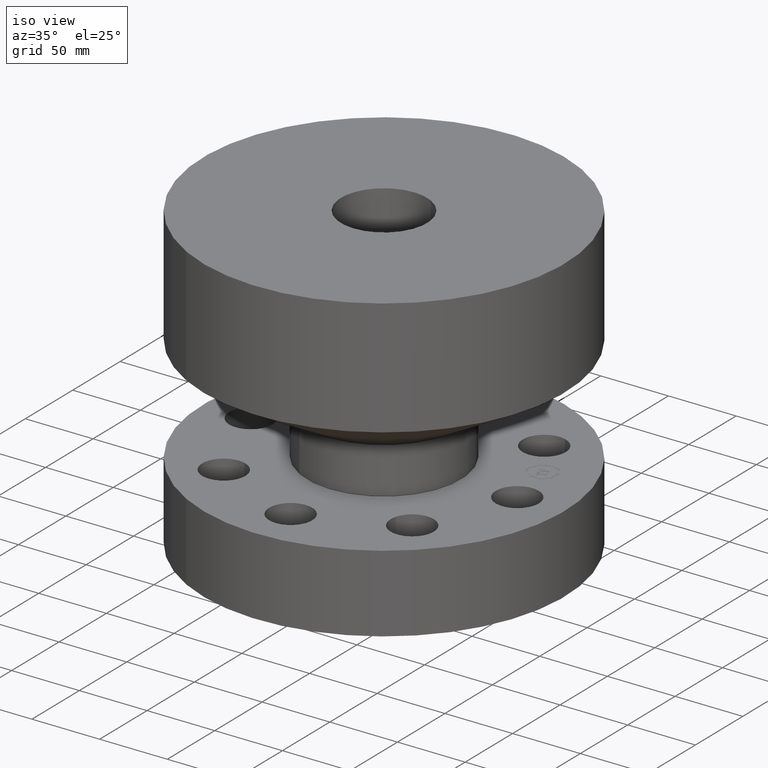
[diagram: clean part render]
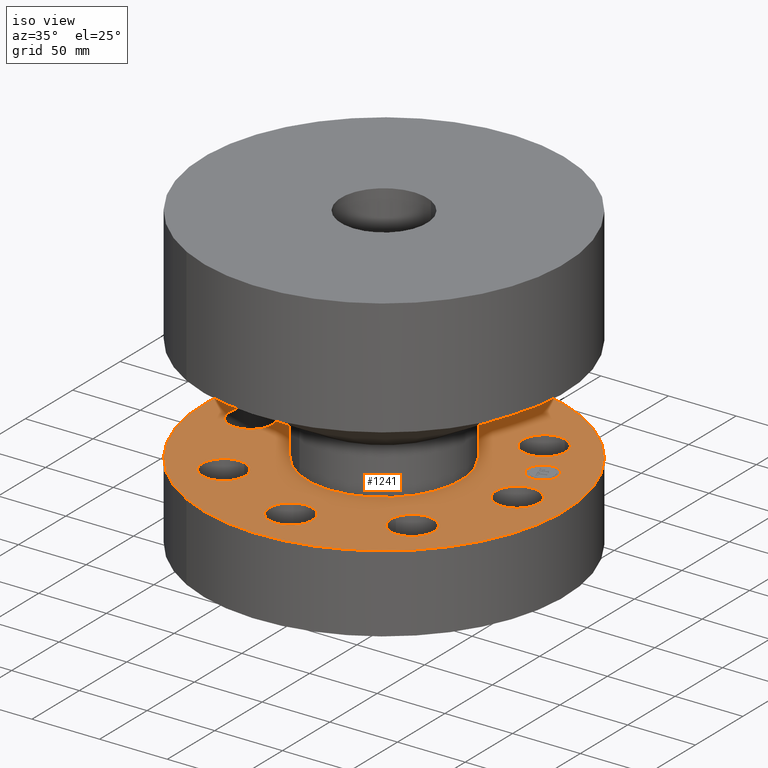
[diagram: same view with one face highlighted and labeled with its STEP entity id]
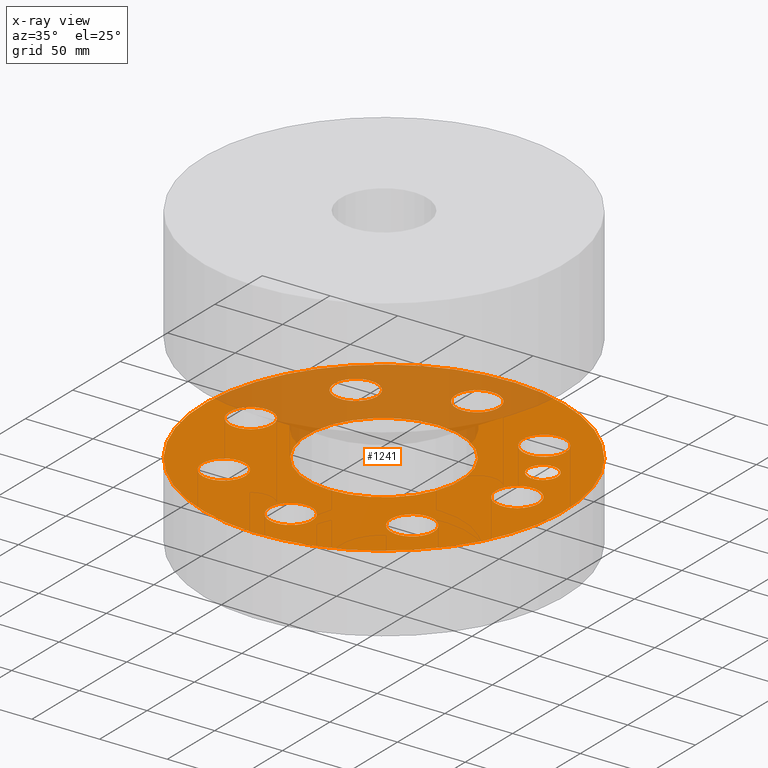
[diagram: x-ray of the same camera — body ghosted, the highlighted face saturated]
A machine part, iso view. The second image highlights one B-rep face of the part: STEP entity #1241.
The next image is the same camera in x-ray: the body ghosted, the highlighted face saturated — about 30% of this face is hidden behind the body in this view.
In plain terms, the highlighted planar face has unit normal (0, 0, -1).
Its self-contained STEP definition (entity closure, byte-faithful):
#65=AXIS2_PLACEMENT_3D('Circle Axis2P3D',#63,#64,$) ;
#266=AXIS2_PLACEMENT_3D('Circle Axis2P3D',#264,#265,$) ;
#285=AXIS2_PLACEMENT_3D('Circle Axis2P3D',#283,#284,$) ;
#302=AXIS2_PLACEMENT_3D('Circle Axis2P3D',#300,#301,$) ;
#337=AXIS2_PLACEMENT_3D('Circle Axis2P3D',#335,#336,$) ;
#867=AXIS2_PLACEMENT_3D('Circle Axis2P3D',#865,#866,$) ;
#898=AXIS2_PLACEMENT_3D('Circle Axis2P3D',#896,#897,$) ;
#910=AXIS2_PLACEMENT_3D('Circle Axis2P3D',#908,#909,$) ;
#941=AXIS2_PLACEMENT_3D('Circle Axis2P3D',#939,#940,$) ;
#953=AXIS2_PLACEMENT_3D('Circle Axis2P3D',#951,#952,$) ;
#984=AXIS2_PLACEMENT_3D('Circle Axis2P3D',#982,#983,$) ;
#996=AXIS2_PLACEMENT_3D('Circle Axis2P3D',#994,#995,$) ;
#1027=AXIS2_PLACEMENT_3D('Circle Axis2P3D',#1025,#1026,$) ;
#1039=AXIS2_PLACEMENT_3D('Circle Axis2P3D',#1037,#1038,$) ;
#1070=AXIS2_PLACEMENT_3D('Circle Axis2P3D',#1068,#1069,$) ;
#1082=AXIS2_PLACEMENT_3D('Circle Axis2P3D',#1080,#1081,$) ;
#1113=AXIS2_PLACEMENT_3D('Circle Axis2P3D',#1111,#1112,$) ;
#1125=AXIS2_PLACEMENT_3D('Circle Axis2P3D',#1123,#1124,$) ;
#1156=AXIS2_PLACEMENT_3D('Circle Axis2P3D',#1154,#1155,$) ;
#1168=AXIS2_PLACEMENT_3D('Circle Axis2P3D',#1166,#1167,$) ;
#1181=AXIS2_PLACEMENT_3D('Plane Axis2P3D',#1178,#1179,#1180) ;
#1225=AXIS2_PLACEMENT_3D('Circle Axis2P3D',#1223,#1224,$) ;
#1234=AXIS2_PLACEMENT_3D('Circle Axis2P3D',#1232,#1233,$) ;
#44=CARTESIAN_POINT('Vertex',(4.4234891012,0.299640961629,2.25000000001)) ;
#60=CARTESIAN_POINT('Vertex',(3.32651089883,-0.299640961629,2.25000000001)) ;
#63=CARTESIAN_POINT('Axis2P3D Location',(3.87500000002,0.,2.25000000001)) ;
#261=CARTESIAN_POINT('Vertex',(-2.51698407768,-4.60730844994,2.25000000001)) ;
#264=CARTESIAN_POINT('Axis2P3D Location',(0.,0.,2.25000000001)) ;
#268=CARTESIAN_POINT('Vertex',(2.51698407768,4.60730844994,2.25000000001)) ;
#283=CARTESIAN_POINT('Axis2P3D Location',(0.,0.,2.25000000001)) ;
#300=CARTESIAN_POINT('Axis2P3D Location',(0.,0.,2.25000000001)) ;
#304=CARTESIAN_POINT('Vertex',(1.07151607878,1.96139702583,2.25000000001)) ;
#306=CARTESIAN_POINT('Vertex',(-1.07151607878,-1.96139702583,2.25000000001)) ;
#335=CARTESIAN_POINT('Axis2P3D Location',(0.,0.,2.25000000001)) ;
#865=CARTESIAN_POINT('Axis2P3D Location',(3.87500000002,0.,2.25000000001)) ;
#886=CARTESIAN_POINT('Vertex',(3.33975729585,-2.91600098407,2.25000000001)) ;
#893=CARTESIAN_POINT('Vertex',(2.14032025837,-2.56407657014,2.25000000001)) ;
#896=CARTESIAN_POINT('Axis2P3D Location',(2.74003877711,-2.74003877711,2.25000000001)) ;
#908=CARTESIAN_POINT('Axis2P3D Location',(2.74003877711,-2.74003877711,2.25000000001)) ;
#929=CARTESIAN_POINT('Vertex',(0.299640961629,-4.4234891012,2.25000000001)) ;
#936=CARTESIAN_POINT('Vertex',(-0.299640961629,-3.32651089883,2.25000000001)) ;
#939=CARTESIAN_POINT('Axis2P3D Location',(-3.22207151767E-016,-3.87500000002,2.25000000001)) ;
#951=CARTESIAN_POINT('Axis2P3D Location',(-3.22207151767E-016,-3.87500000002,2.25000000001)) ;
#972=CARTESIAN_POINT('Vertex',(-2.91600098407,-3.33975729585,2.25000000001)) ;
#979=CARTESIAN_POINT('Vertex',(-2.56407657014,-2.14032025837,2.25000000001)) ;
#982=CARTESIAN_POINT('Axis2P3D Location',(-2.74003877711,-2.74003877711,2.25000000001)) ;
#994=CARTESIAN_POINT('Axis2P3D Location',(-2.74003877711,-2.74003877711,2.25000000001)) ;
#1015=CARTESIAN_POINT('Vertex',(-4.4234891012,-0.299640961629,2.25000000001)) ;
#1022=CARTESIAN_POINT('Vertex',(-3.32651089883,0.299640961629,2.25000000001)) ;
#1025=CARTESIAN_POINT('Axis2P3D Location',(-3.87500000002,-4.74550634671E-016,2.25000000001)) ;
#1037=CARTESIAN_POINT('Axis2P3D Location',(-3.87500000002,-4.74550634671E-016,2.25000000001)) ;
#1058=CARTESIAN_POINT('Vertex',(-3.33975729585,2.91600098407,2.25000000001)) ;
#1065=CARTESIAN_POINT('Vertex',(-2.14032025837,2.56407657014,2.25000000001)) ;
#1068=CARTESIAN_POINT('Axis2P3D Location',(-2.74003877711,2.74003877711,2.25000000001)) ;
#1080=CARTESIAN_POINT('Axis2P3D Location',(-2.74003877711,2.74003877711,2.25000000001)) ;
#1101=CARTESIAN_POINT('Vertex',(-0.299640961629,4.4234891012,2.25000000001)) ;
#1108=CARTESIAN_POINT('Vertex',(0.299640961629,3.32651089883,2.25000000001)) ;
#1111=CARTESIAN_POINT('Axis2P3D Location',(-1.52343482905E-016,3.87500000002,2.25000000001)) ;
#1123=CARTESIAN_POINT('Axis2P3D Location',(-1.52343482905E-016,3.87500000002,2.25000000001)) ;
#1144=CARTESIAN_POINT('Vertex',(2.91600098407,3.33975729585,2.25000000001)) ;
#1151=CARTESIAN_POINT('Vertex',(2.56407657014,2.14032025837,2.25000000001)) ;
#1154=CARTESIAN_POINT('Axis2P3D Location',(2.74003877711,2.74003877711,2.25000000001)) ;
#1166=CARTESIAN_POINT('Axis2P3D Location',(2.74003877711,2.74003877711,2.25000000001)) ;
#1178=CARTESIAN_POINT('Axis2P3D Location',(0.,5.25000000002,2.25000000001)) ;
#1223=CARTESIAN_POINT('Axis2P3D Location',(3.5800331885,1.48289830042,2.25000000001)) ;
#1227=CARTESIAN_POINT('Vertex',(3.74267364562,1.09024950303,2.25000000001)) ;
#1229=CARTESIAN_POINT('Vertex',(3.41739273137,1.87554709781,2.25000000001)) ;
#1232=CARTESIAN_POINT('Axis2P3D Location',(3.5800331885,1.48289830042,2.25000000001)) ;
#64=DIRECTION('Axis2P3D Direction',(0.,-0.,0.0393700787402)) ;
#265=DIRECTION('Axis2P3D Direction',(0.,0.,-0.0393700787402)) ;
#284=DIRECTION('Axis2P3D Direction',(0.,0.,-0.0393700787402)) ;
#301=DIRECTION('Axis2P3D Direction',(0.,0.,-0.0393700787402)) ;
#336=DIRECTION('Axis2P3D Direction',(0.,0.,-0.0393700787402)) ;
#866=DIRECTION('Axis2P3D Direction',(0.,-0.,0.0393700787402)) ;
#897=DIRECTION('Axis2P3D Direction',(-0.,0.,0.0393700787402)) ;
#909=DIRECTION('Axis2P3D Direction',(-0.,0.,0.0393700787402)) ;
#940=DIRECTION('Axis2P3D Direction',(-0.,0.,0.0393700787402)) ;
#952=DIRECTION('Axis2P3D Direction',(-0.,0.,0.0393700787402)) ;
#983=DIRECTION('Axis2P3D Direction',(0.,0.,0.0393700787402)) ;
#995=DIRECTION('Axis2P3D Direction',(0.,0.,0.0393700787402)) ;
#1026=DIRECTION('Axis2P3D Direction',(0.,0.,0.0393700787402)) ;
#1038=DIRECTION('Axis2P3D Direction',(0.,0.,0.0393700787402)) ;
#1069=DIRECTION('Axis2P3D Direction',(0.,0.,0.0393700787402)) ;
#1081=DIRECTION('Axis2P3D Direction',(0.,0.,0.0393700787402)) ;
#1112=DIRECTION('Axis2P3D Direction',(0.,0.,0.0393700787402)) ;
#1124=DIRECTION('Axis2P3D Direction',(0.,0.,0.0393700787402)) ;
#1155=DIRECTION('Axis2P3D Direction',(0.,-0.,0.0393700787402)) ;
#1167=DIRECTION('Axis2P3D Direction',(0.,-0.,0.0393700787402)) ;
#1179=DIRECTION('Axis2P3D Direction',(0.,0.,-0.0393700787402)) ;
#1180=DIRECTION('Axis2P3D XDirection',(0.0393700787402,0.,0.)) ;
#1224=DIRECTION('Axis2P3D Direction',(0.,0.,-0.0393700787402)) ;
#1233=DIRECTION('Axis2P3D Direction',(0.,0.,-0.0393700787402)) ;
#1184=ORIENTED_EDGE('',*,*,#287,.F.) ;
#1185=ORIENTED_EDGE('',*,*,#270,.F.) ;
#1188=ORIENTED_EDGE('',*,*,#67,.T.) ;
#1189=ORIENTED_EDGE('',*,*,#869,.T.) ;
#1192=ORIENTED_EDGE('',*,*,#339,.T.) ;
#1193=ORIENTED_EDGE('',*,*,#308,.T.) ;
#1196=ORIENTED_EDGE('',*,*,#912,.T.) ;
#1197=ORIENTED_EDGE('',*,*,#900,.T.) ;
#1200=ORIENTED_EDGE('',*,*,#955,.T.) ;
#1201=ORIENTED_EDGE('',*,*,#943,.T.) ;
#1204=ORIENTED_EDGE('',*,*,#998,.T.) ;
#1205=ORIENTED_EDGE('',*,*,#986,.T.) ;
#1208=ORIENTED_EDGE('',*,*,#1041,.T.) ;
#1209=ORIENTED_EDGE('',*,*,#1029,.T.) ;
#1212=ORIENTED_EDGE('',*,*,#1084,.T.) ;
#1213=ORIENTED_EDGE('',*,*,#1072,.T.) ;
#1216=ORIENTED_EDGE('',*,*,#1127,.T.) ;
#1217=ORIENTED_EDGE('',*,*,#1115,.T.) ;
#1220=ORIENTED_EDGE('',*,*,#1170,.T.) ;
#1221=ORIENTED_EDGE('',*,*,#1158,.T.) ;
#1238=ORIENTED_EDGE('',*,*,#1231,.F.) ;
#1239=ORIENTED_EDGE('',*,*,#1236,.F.) ;
#1190=FACE_BOUND('',#1187,.T.) ;
#1194=FACE_BOUND('',#1191,.T.) ;
#1198=FACE_BOUND('',#1195,.T.) ;
#1202=FACE_BOUND('',#1199,.T.) ;
#1206=FACE_BOUND('',#1203,.T.) ;
#1210=FACE_BOUND('',#1207,.T.) ;
#1214=FACE_BOUND('',#1211,.T.) ;
#1218=FACE_BOUND('',#1215,.T.) ;
#1222=FACE_BOUND('',#1219,.T.) ;
#1240=FACE_BOUND('',#1237,.T.) ;
#1241=ADVANCED_FACE('PartBody',(#1186,#1190,#1194,#1198,#1202,#1206,#1210,#1214,#1218,#1222,#1240),#1182,.F.) ;
#66=CIRCLE('generated circle',#65,0.625000000002) ;
#267=CIRCLE('generated circle',#266,5.25000000002) ;
#286=CIRCLE('generated circle',#285,5.25000000002) ;
#303=CIRCLE('generated circle',#302,2.23500000001) ;
#338=CIRCLE('generated circle',#337,2.23500000001) ;
#868=CIRCLE('generated circle',#867,0.625000000002) ;
#899=CIRCLE('generated circle',#898,0.625000000002) ;
#911=CIRCLE('generated circle',#910,0.625000000002) ;
#942=CIRCLE('generated circle',#941,0.625000000002) ;
#954=CIRCLE('generated circle',#953,0.625000000002) ;
#985=CIRCLE('generated circle',#984,0.625000000002) ;
#997=CIRCLE('generated circle',#996,0.625000000002) ;
#1028=CIRCLE('generated circle',#1027,0.625000000002) ;
#1040=CIRCLE('generated circle',#1039,0.625000000002) ;
#1071=CIRCLE('generated circle',#1070,0.625000000003) ;
#1083=CIRCLE('generated circle',#1082,0.625000000003) ;
#1114=CIRCLE('generated circle',#1113,0.625000000002) ;
#1126=CIRCLE('generated circle',#1125,0.625000000002) ;
#1157=CIRCLE('generated circle',#1156,0.625000000003) ;
#1169=CIRCLE('generated circle',#1168,0.625000000003) ;
#1226=CIRCLE('generated circle',#1225,0.424999995752) ;
#1235=CIRCLE('generated circle',#1234,0.424999995752) ;
#67=EDGE_CURVE('',#45,#61,#66,.F.) ;
#270=EDGE_CURVE('',#262,#269,#267,.T.) ;
#287=EDGE_CURVE('',#269,#262,#286,.T.) ;
#308=EDGE_CURVE('',#305,#307,#303,.T.) ;
#339=EDGE_CURVE('',#307,#305,#338,.T.) ;
#869=EDGE_CURVE('',#61,#45,#868,.F.) ;
#900=EDGE_CURVE('',#887,#894,#899,.F.) ;
#912=EDGE_CURVE('',#894,#887,#911,.F.) ;
#943=EDGE_CURVE('',#930,#937,#942,.F.) ;
#955=EDGE_CURVE('',#937,#930,#954,.F.) ;
#986=EDGE_CURVE('',#973,#980,#985,.F.) ;
#998=EDGE_CURVE('',#980,#973,#997,.F.) ;
#1029=EDGE_CURVE('',#1016,#1023,#1028,.F.) ;
#1041=EDGE_CURVE('',#1023,#1016,#1040,.F.) ;
#1072=EDGE_CURVE('',#1059,#1066,#1071,.F.) ;
#1084=EDGE_CURVE('',#1066,#1059,#1083,.F.) ;
#1115=EDGE_CURVE('',#1102,#1109,#1114,.F.) ;
#1127=EDGE_CURVE('',#1109,#1102,#1126,.F.) ;
#1158=EDGE_CURVE('',#1145,#1152,#1157,.F.) ;
#1170=EDGE_CURVE('',#1152,#1145,#1169,.F.) ;
#1231=EDGE_CURVE('',#1228,#1230,#1226,.F.) ;
#1236=EDGE_CURVE('',#1230,#1228,#1235,.F.) ;
#1183=EDGE_LOOP('',(#1184,#1185)) ;
#1187=EDGE_LOOP('',(#1188,#1189)) ;
#1191=EDGE_LOOP('',(#1192,#1193)) ;
#1195=EDGE_LOOP('',(#1196,#1197)) ;
#1199=EDGE_LOOP('',(#1200,#1201)) ;
#1203=EDGE_LOOP('',(#1204,#1205)) ;
#1207=EDGE_LOOP('',(#1208,#1209)) ;
#1211=EDGE_LOOP('',(#1212,#1213)) ;
#1215=EDGE_LOOP('',(#1216,#1217)) ;
#1219=EDGE_LOOP('',(#1220,#1221)) ;
#1237=EDGE_LOOP('',(#1238,#1239)) ;
#1186=FACE_OUTER_BOUND('',#1183,.T.) ;
#1182=PLANE('',#1181) ;
#45=VERTEX_POINT('',#44) ;
#61=VERTEX_POINT('',#60) ;
#262=VERTEX_POINT('',#261) ;
#269=VERTEX_POINT('',#268) ;
#305=VERTEX_POINT('',#304) ;
#307=VERTEX_POINT('',#306) ;
#887=VERTEX_POINT('',#886) ;
#894=VERTEX_POINT('',#893) ;
#930=VERTEX_POINT('',#929) ;
#937=VERTEX_POINT('',#936) ;
#973=VERTEX_POINT('',#972) ;
#980=VERTEX_POINT('',#979) ;
#1016=VERTEX_POINT('',#1015) ;
#1023=VERTEX_POINT('',#1022) ;
#1059=VERTEX_POINT('',#1058) ;
#1066=VERTEX_POINT('',#1065) ;
#1102=VERTEX_POINT('',#1101) ;
#1109=VERTEX_POINT('',#1108) ;
#1145=VERTEX_POINT('',#1144) ;
#1152=VERTEX_POINT('',#1151) ;
#1228=VERTEX_POINT('',#1227) ;
#1230=VERTEX_POINT('',#1229) ;